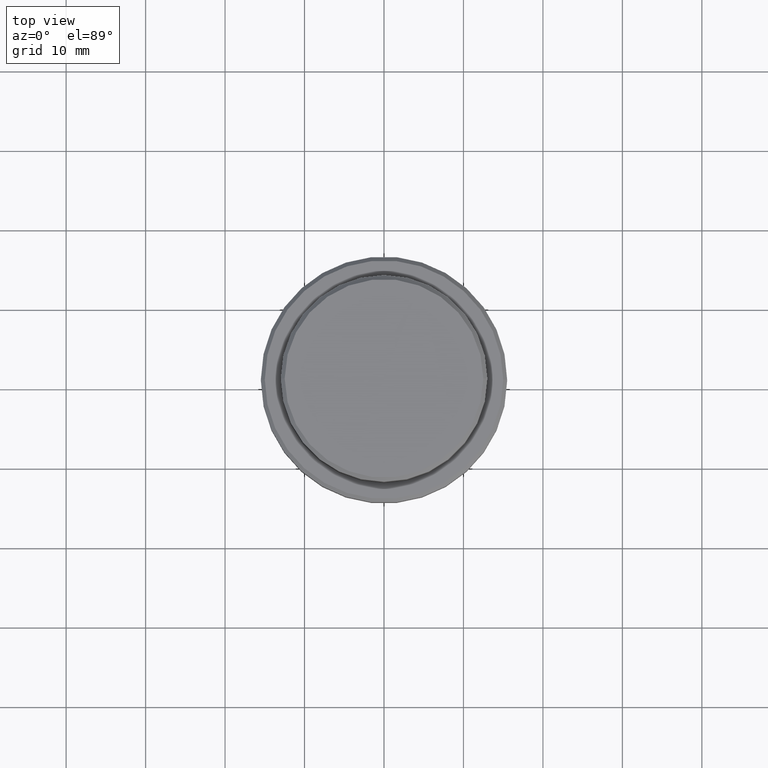
[diagram: clean part render]
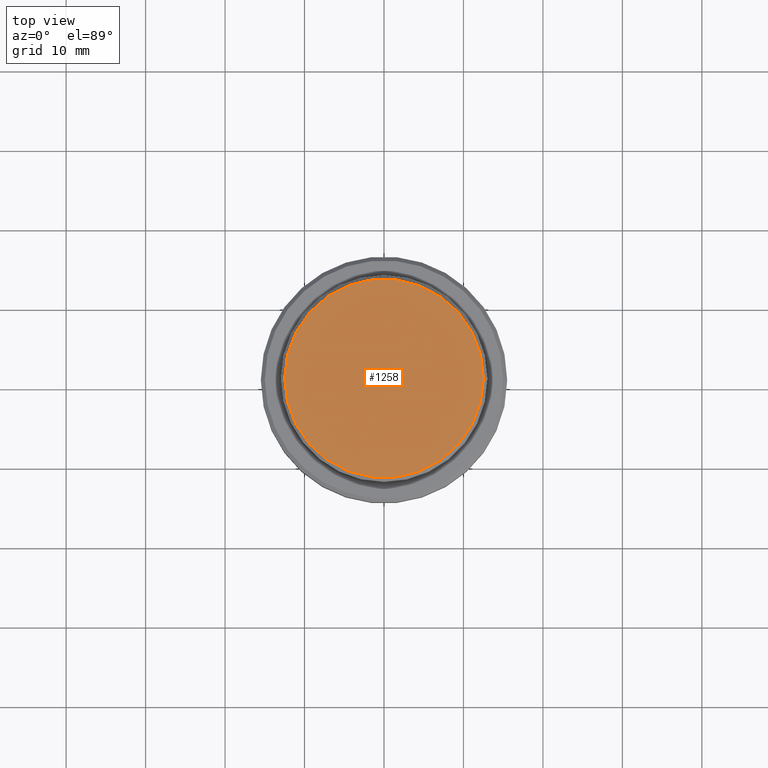
[diagram: same view with one face highlighted and labeled with its STEP entity id]
A machine part, top view. The second image highlights one B-rep face of the part: STEP entity #1258.
In plain terms, the highlighted planar face has unit normal (0, -0, 1).
Its self-contained STEP definition (entity closure, byte-faithful):
#23 = CARTESIAN_POINT ( 'NONE',  ( 0.000000000000000000, 0.000000000000000000, 0.000000000000000000 ) ) ;
#38 = CARTESIAN_POINT ( 'NONE',  ( -12.49999999999999822, 0.000000000000000000, 0.000000000000000000 ) ) ;
#160 = AXIS2_PLACEMENT_3D ( 'NONE', #314, #517, #1378 ) ;
#224 = EDGE_LOOP ( 'NONE', ( #1221, #1340 ) ) ;
#314 = CARTESIAN_POINT ( 'NONE',  ( 0.000000000000000000, 0.000000000000000000, 0.000000000000000000 ) ) ;
#418 = FACE_OUTER_BOUND ( 'NONE', #224, .T. ) ;
#517 = DIRECTION ( 'NONE',  ( -0.000000000000000000, -0.000000000000000000, 1.000000000000000000 ) ) ;
#530 = EDGE_CURVE ( 'NONE', #661, #1128, #769, .T. ) ;
#542 = PLANE ( 'NONE',  #800 ) ;
#661 = VERTEX_POINT ( 'NONE', #38 ) ;
#677 = DIRECTION ( 'NONE',  ( 1.000000000000000000, 0.000000000000000000, 0.000000000000000000 ) ) ;
#732 = DIRECTION ( 'NONE',  ( 1.000000000000000000, 0.000000000000000000, 0.000000000000000000 ) ) ;
#769 = CIRCLE ( 'NONE', #160, 12.49999999999999822 ) ;
#799 = DIRECTION ( 'NONE',  ( -0.000000000000000000, -0.000000000000000000, 1.000000000000000000 ) ) ;
#800 = AXIS2_PLACEMENT_3D ( 'NONE', #1394, #867, #732 ) ;
#867 = DIRECTION ( 'NONE',  ( 0.000000000000000000, -0.000000000000000000, 1.000000000000000000 ) ) ;
#936 = AXIS2_PLACEMENT_3D ( 'NONE', #23, #799, #677 ) ;
#1031 = CARTESIAN_POINT ( 'NONE',  ( 12.49999999999999822, 1.561424668912875111E-15, 0.000000000000000000 ) ) ;
#1079 = EDGE_CURVE ( 'NONE', #1128, #661, #1205, .T. ) ;
#1128 = VERTEX_POINT ( 'NONE', #1031 ) ;
#1205 = CIRCLE ( 'NONE', #936, 12.49999999999999822 ) ;
#1221 = ORIENTED_EDGE ( 'NONE', *, *, #530, .T. ) ;
#1258 = ADVANCED_FACE ( 'NONE', ( #418 ), #542, .T. ) ;
#1340 = ORIENTED_EDGE ( 'NONE', *, *, #1079, .T. ) ;
#1378 = DIRECTION ( 'NONE',  ( 1.000000000000000000, 0.000000000000000000, 0.000000000000000000 ) ) ;
#1394 = CARTESIAN_POINT ( 'NONE',  ( 0.000000000000000000, 0.000000000000000000, 0.000000000000000000 ) ) ;